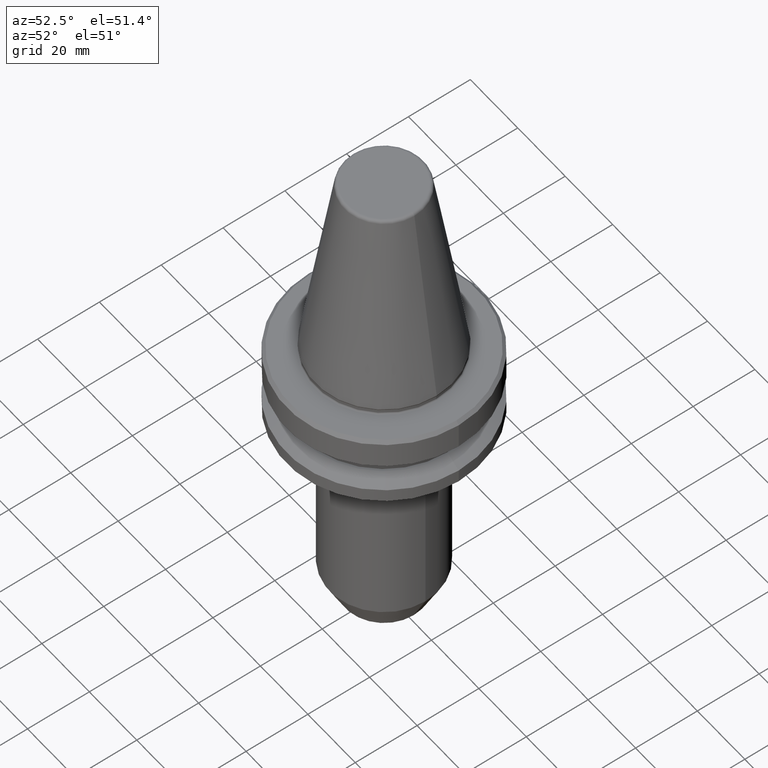
[diagram: clean part render]
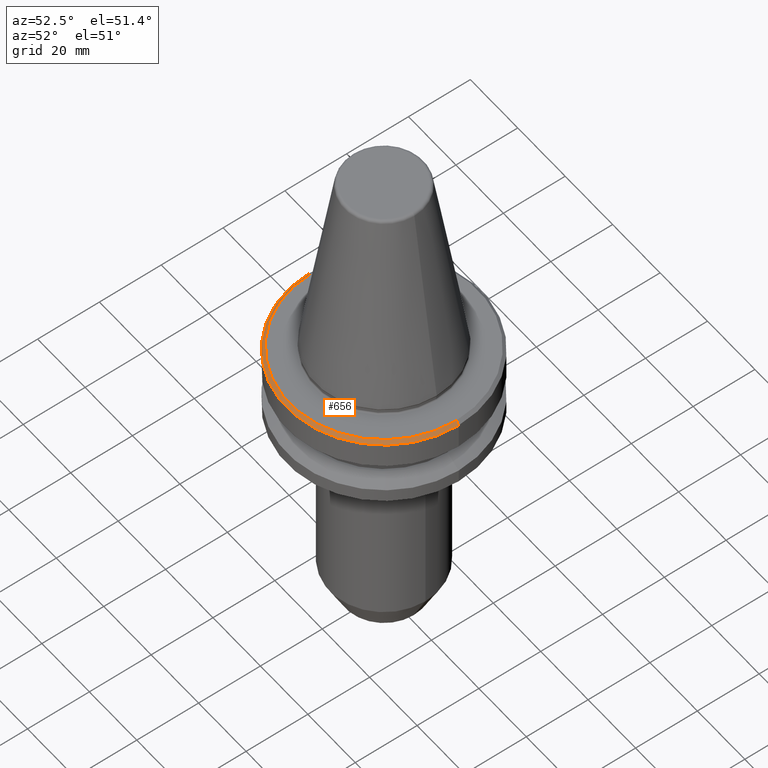
[diagram: same view with one face highlighted and labeled with its STEP entity id]
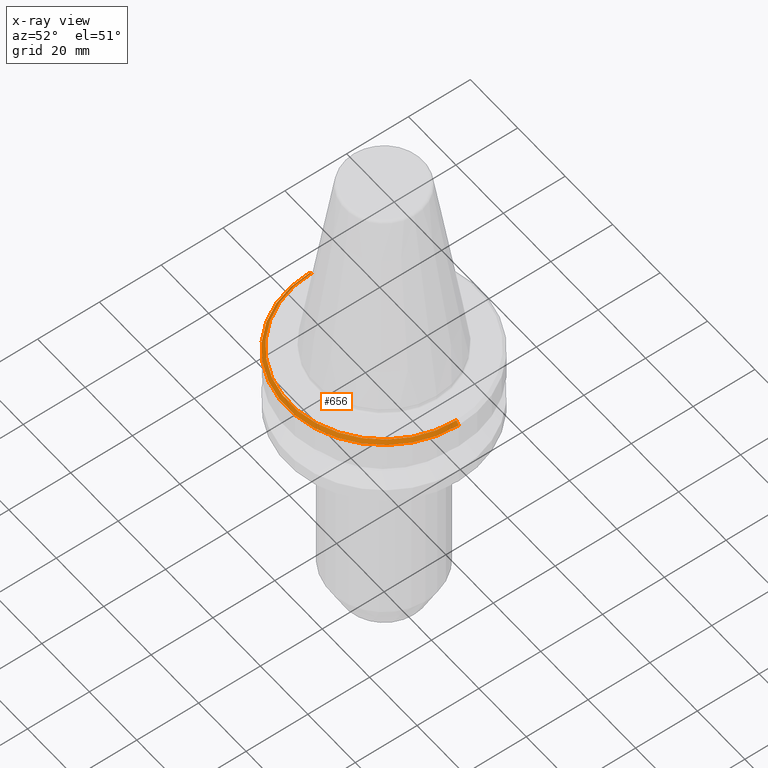
[diagram: x-ray of the same camera — body ghosted, the highlighted face saturated]
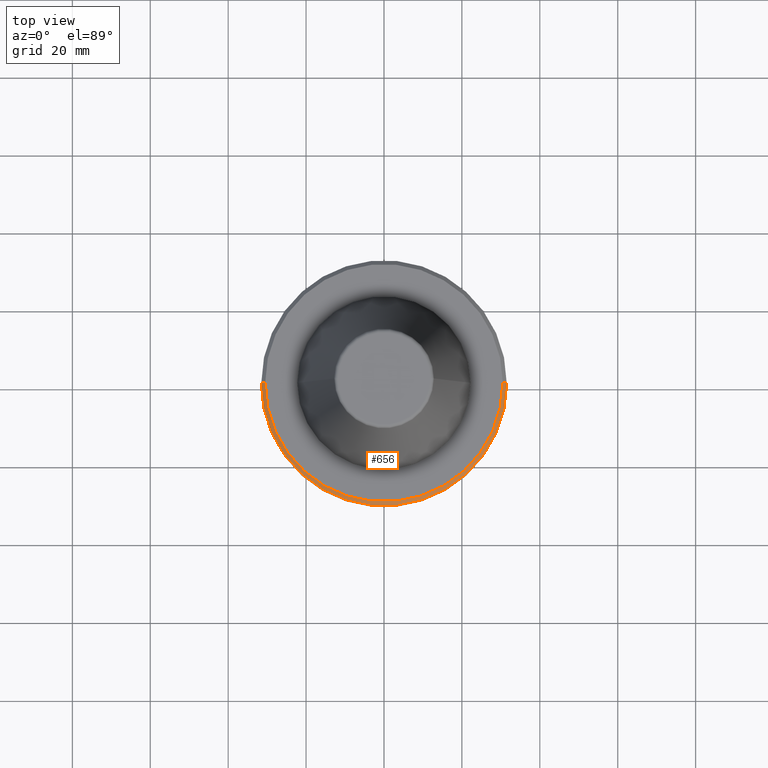
[diagram: same view with one face highlighted and labeled with its STEP entity id]
A machine part, auxiliary view. The second image highlights one B-rep face of the part: STEP entity #656.
The next image is the same camera in x-ray: the body ghosted, the highlighted face saturated — about 0% of this face is hidden behind the body in this view.
A second angle (top view) of the same face is appended — the face is thin or edge-on in the first view.
In plain terms, the highlighted conical surface has half-angle 45 deg.
Its self-contained STEP definition (entity closure, byte-faithful):
#64 = AXIS2_PLACEMENT_3D ( 'NONE', #150, #744, #230 ) ;
#88 = ORIENTED_EDGE ( 'NONE', *, *, #905, .F. ) ;
#91 = CARTESIAN_POINT ( 'NONE',  ( 31.49999999999986100, 0.0000000000000000000, -2.999999999999780600 ) ) ;
#113 = VERTEX_POINT ( 'NONE', #543 ) ;
#150 = CARTESIAN_POINT ( 'NONE',  ( 0.0000000000000000000, 0.0000000000000000000, -2.999999999999780600 ) ) ;
#206 = CARTESIAN_POINT ( 'NONE',  ( 31.49999999999986100, 3.857637417314145300E-015, -2.999999999999780600 ) ) ;
#230 = DIRECTION ( 'NONE',  ( 1.000000000000000000, 0.0000000000000000000, 0.0000000000000000000 ) ) ;
#240 = DIRECTION ( 'NONE',  ( -0.7071067811865474600, 0.0000000000000000000, -0.7071067811865475700 ) ) ;
#320 = EDGE_CURVE ( 'NONE', #113, #337, #506, .T. ) ;
#325 = CIRCLE ( 'NONE', #944, 30.49999999999986100 ) ;
#337 = VERTEX_POINT ( 'NONE', #91 ) ;
#347 = FACE_OUTER_BOUND ( 'NONE', #806, .T. ) ;
#450 = VERTEX_POINT ( 'NONE', #939 ) ;
#485 = DIRECTION ( 'NONE',  ( 1.000000000000000000, 0.0000000000000000000, 0.0000000000000000000 ) ) ;
#506 = CIRCLE ( 'NONE', #64, 31.49999999999986100 ) ;
#535 = DIRECTION ( 'NONE',  ( 0.7071067811865474600, 8.659560562354931600E-017, -0.7071067811865475700 ) ) ;
#539 = CARTESIAN_POINT ( 'NONE',  ( 0.0000000000000000000, 0.0000000000000000000, -2.999999999999780600 ) ) ;
#543 = CARTESIAN_POINT ( 'NONE',  ( -31.49999999999986100, 3.857637417314145300E-015, -2.999999999999780600 ) ) ;
#554 = VECTOR ( 'NONE', #535, 1000.000000000000000 ) ;
#637 = EDGE_CURVE ( 'NONE', #450, #820, #325, .T. ) ;
#656 = ADVANCED_FACE ( 'NONE', ( #347 ), #907, .T. ) ;
#715 = CARTESIAN_POINT ( 'NONE',  ( 0.0000000000000000000, 0.0000000000000000000, -1.999999999999779700 ) ) ;
#727 = DIRECTION ( 'NONE',  ( -1.000000000000000000, 0.0000000000000000000, 0.0000000000000000000 ) ) ;
#744 = DIRECTION ( 'NONE',  ( -0.0000000000000000000, -0.0000000000000000000, 1.000000000000000000 ) ) ;
#748 = DIRECTION ( 'NONE',  ( 0.0000000000000000000, 0.0000000000000000000, -1.000000000000000000 ) ) ;
#750 = LINE ( 'NONE', #914, #915 ) ;
#752 = ORIENTED_EDGE ( 'NONE', *, *, #320, .T. ) ;
#775 = ORIENTED_EDGE ( 'NONE', *, *, #930, .T. ) ;
#806 = EDGE_LOOP ( 'NONE', ( #88, #810, #775, #752 ) ) ;
#810 = ORIENTED_EDGE ( 'NONE', *, *, #637, .F. ) ;
#820 = VERTEX_POINT ( 'NONE', #938 ) ;
#905 = EDGE_CURVE ( 'NONE', #820, #337, #963, .T. ) ;
#907 = CONICAL_SURFACE ( 'NONE', #970, 31.49999999999986100, 0.7853981633974482800 ) ;
#914 = CARTESIAN_POINT ( 'NONE',  ( -31.49999999999986100, 0.0000000000000000000, -2.999999999999780600 ) ) ;
#915 = VECTOR ( 'NONE', #240, 1000.000000000000000 ) ;
#930 = EDGE_CURVE ( 'NONE', #450, #113, #750, .T. ) ;
#938 = CARTESIAN_POINT ( 'NONE',  ( 30.49999999999986100, 3.796405077356777800E-015, -1.999999999999779700 ) ) ;
#939 = CARTESIAN_POINT ( 'NONE',  ( -30.49999999999986100, 0.0000000000000000000, -1.999999999999779700 ) ) ;
#944 = AXIS2_PLACEMENT_3D ( 'NONE', #715, #1027, #485 ) ;
#963 = LINE ( 'NONE', #206, #554 ) ;
#970 = AXIS2_PLACEMENT_3D ( 'NONE', #539, #748, #727 ) ;
#1027 = DIRECTION ( 'NONE',  ( -0.0000000000000000000, -0.0000000000000000000, 1.000000000000000000 ) ) ;